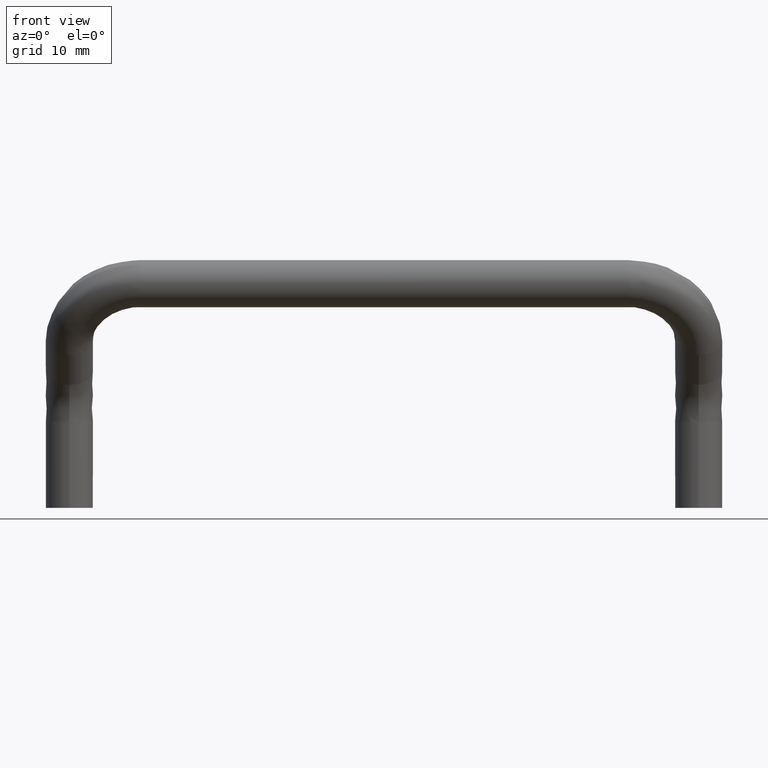
[diagram: clean part render]
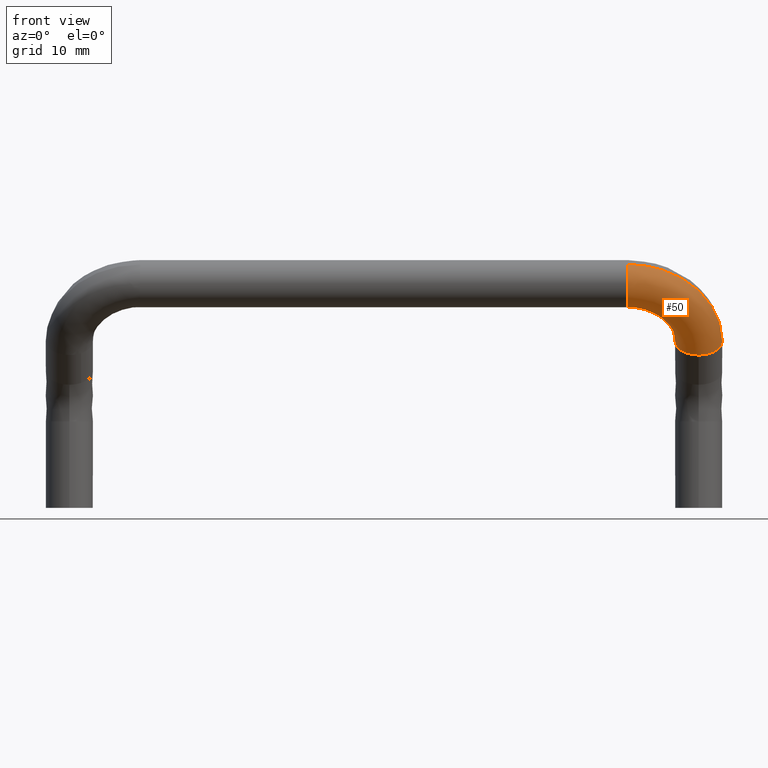
[diagram: same view with one face highlighted and labeled with its STEP entity id]
A machine part, front view. The second image highlights one B-rep face of the part: STEP entity #50.
In plain terms, the highlighted face is a freeform B-spline surface patch.
Its self-contained STEP definition (entity closure, byte-faithful):
#50=ADVANCED_FACE('',(#169),#168,.T.);
#168=( BOUNDED_SURFACE() B_SPLINE_SURFACE( 2,2,((#402,#403,#404,#405,#406,#407,#408),(#409,#410,#411,#412,#413,#414,#415),(#416,#417,#418,#419,#420,#421,#422),(#423,#424,#425,#426,#427,#428,#429),(#430,#431,#432,#433,#434,#435,#436)), .UNSPECIFIED.,.F.,.F.,.F.) B_SPLINE_SURFACE_WITH_KNOTS((3,2,3),(3,2,2,3),(-3.14159265359E+00,-1.57079632679E+00,0.00000000000E+00),(1.56908603987E+00,1.57079632679E+00,3.14159265359E+00,3.14330294051E+00), .UNSPECIFIED. ) GEOMETRIC_REPRESENTATION_ITEM() RATIONAL_B_SPLINE_SURFACE(((9.99362888724E-01,9.99681097140E-01,1.00000000000E+00,7.07106781187E-01,1.00000000000E+00,9.99681097140E-01,9.99362888724E-01),(7.06656275483E-01,7.06881282811E-01,7.07106781187E-01,5.00000000000E-01,7.07106781187E-01,7.06881282811E-01,7.06656275483E-01),(9.99362888724E-01,9.99681097140E-01,1.00000000000E+00,7.07106781187E-01,1.00000000000E+00,9.99681097140E-01,9.99362888724E-01),(7.06656275483E-01,7.06881282811E-01,7.07106781187E-01,5.00000000000E-01,7.07106781187E-01,7.06881282811E-01,7.06656275483E-01),(9.99362888724E-01,9.99681097140E-01,1.00000000000E+00,7.07106781187E-01,1.00000000000E+00,9.99681097140E-01,9.99362888724E-01))) REPRESENTATION_ITEM('') SURFACE() );
#169=FACE_OUTER_BOUND('',#437,.T.);
#402=CARTESIAN_POINT('',(3.69999928825E+01,5.24435089545E+00,-4.32551843624E+00));
#403=CARTESIAN_POINT('',(3.70000000000E+01,5.24166105291E+00,-4.32176115693E+00));
#404=CARTESIAN_POINT('',(3.70000000000E+01,5.23897120719E+00,-4.31800387317E+00));
#405=CARTESIAN_POINT('',(3.70000000000E+01,1.74632373575E+00,5.60665375572E-01));
#406=CARTESIAN_POINT('',(3.10000000001E+01,1.74632373575E+00,5.60665375572E-01));
#407=CARTESIAN_POINT('',(3.09953791288E+01,1.74632373575E+00,5.60665375572E-01));
#408=CARTESIAN_POINT('',(3.09907582630E+01,1.74632787890E+00,5.60659588267E-01));
#409=CARTESIAN_POINT('',(3.69999928825E+01,2.80501627102E+00,-6.07184217200E+00));
#410=CARTESIAN_POINT('',(3.70000000000E+01,2.80232642849E+00,-6.06808489269E+00));
#411=CARTESIAN_POINT('',(3.70000000000E+01,2.79963658276E+00,-6.06432760893E+00));
#412=CARTESIAN_POINT('',(3.70000000000E+01,-6.93010888673E-01,-1.18565836018E+00));
#413=CARTESIAN_POINT('',(3.10000000001E+01,-6.93010888673E-01,-1.18565836018E+00));
#414=CARTESIAN_POINT('',(3.09953791288E+01,-6.93010888673E-01,-1.18565836018E+00));
#415=CARTESIAN_POINT('',(3.09907582630E+01,-6.93006745532E-01,-1.18566414749E+00));
#416=CARTESIAN_POINT('',(3.99999893237E+01,2.80770611515E+00,-6.07559945353E+00));
#417=CARTESIAN_POINT('',(4.00000000000E+01,2.80367135135E+00,-6.06996353457E+00));
#418=CARTESIAN_POINT('',(4.00000000000E+01,2.79963658276E+00,-6.06432760893E+00));
#419=CARTESIAN_POINT('',(4.00000000000E+01,-2.43933462443E+00,1.25367626424E+00));
#420=CARTESIAN_POINT('',(3.10000000001E+01,-2.43933462443E+00,1.25367626424E+00));
#421=CARTESIAN_POINT('',(3.09930686932E+01,-2.43933462443E+00,1.25367626424E+00));
#422=CARTESIAN_POINT('',(3.09861373945E+01,-2.43932840972E+00,1.25366758329E+00));
#423=CARTESIAN_POINT('',(4.29999857650E+01,2.81039595929E+00,-6.07935673506E+00));
#424=CARTESIAN_POINT('',(4.30000000000E+01,2.80501627421E+00,-6.07184217645E+00));
#425=CARTESIAN_POINT('',(4.30000000000E+01,2.79963658276E+00,-6.06432760893E+00));
#426=CARTESIAN_POINT('',(4.30000000000E+01,-4.18565836018E+00,3.69301088867E+00));
#427=CARTESIAN_POINT('',(3.10000000001E+01,-4.18565836018E+00,3.69301088867E+00));
#428=CARTESIAN_POINT('',(3.09907582576E+01,-4.18565836018E+00,3.69301088867E+00));
#429=CARTESIAN_POINT('',(3.09815165260E+01,-4.18565007390E+00,3.69299931406E+00));
#430=CARTESIAN_POINT('',(4.29999857650E+01,5.24973058371E+00,-4.33303299931E+00));
#431=CARTESIAN_POINT('',(4.30000000000E+01,5.24435089864E+00,-4.32551844070E+00));
#432=CARTESIAN_POINT('',(4.30000000000E+01,5.23897120719E+00,-4.31800387317E+00));
#433=CARTESIAN_POINT('',(4.30000000000E+01,-1.74632373576E+00,5.43933462443E+00));
#434=CARTESIAN_POINT('',(3.10000000001E+01,-1.74632373576E+00,5.43933462443E+00));
#435=CARTESIAN_POINT('',(3.09907582576E+01,-1.74632373576E+00,5.43933462443E+00));
#436=CARTESIAN_POINT('',(3.09815165260E+01,-1.74631544947E+00,5.43932304982E+00));
#437=EDGE_LOOP('',(#648,#649,#650,#651,#652,#653));
#648=ORIENTED_EDGE('',*,*,#759,.T.);
#649=ORIENTED_EDGE('',*,*,#760,.T.);
#650=ORIENTED_EDGE('',*,*,#761,.F.);
#651=ORIENTED_EDGE('',*,*,#762,.F.);
#652=ORIENTED_EDGE('',*,*,#763,.F.);
#653=ORIENTED_EDGE('',*,*,#764,.T.);
#759=EDGE_CURVE('',#966,#967,#968,.T.);
#760=EDGE_CURVE('',#967,#974,#975,.T.);
#761=EDGE_CURVE('',#981,#974,#982,.T.);
#762=EDGE_CURVE('',#988,#981,#989,.T.);
#763=EDGE_CURVE('',#995,#988,#996,.T.);
#764=EDGE_CURVE('',#995,#966,#1002,.T.);
#966=VERTEX_POINT('',#1325);
#967=VERTEX_POINT('',#1326);
#968=CIRCLE('',#1330,3.00000000000E+00);
#974=VERTEX_POINT('',#1331);
#975=CIRCLE('',#1335,3.00000000000E+00);
#981=VERTEX_POINT('',#1336);
#982=(BOUNDED_CURVE() B_SPLINE_CURVE(2,(#1337,#1338,#1339),.UNSPECIFIED.,.F.,.F.) B_SPLINE_CURVE_WITH_KNOTS((3,3),(1.57079632679E+00,3.14159265359E+00),.UNSPECIFIED.) CURVE() GEOMETRIC_REPRESENTATION_ITEM() RATIONAL_B_SPLINE_CURVE((1.00000000000E+00,7.07106781187E-01,1.00000000000E+00)) REPRESENTATION_ITEM('') );
#988=VERTEX_POINT('',#1340);
#989=CIRCLE('',#1344,3.00000000000E+00);
#995=VERTEX_POINT('',#1345);
#996=CIRCLE('',#1349,3.00000000000E+00);
#1002=(BOUNDED_CURVE() B_SPLINE_CURVE(3,(#1350,#1351,#1352,#1353,#1354),.UNSPECIFIED.,.F.,.F.) B_SPLINE_CURVE_WITH_KNOTS((4,1,4),(1.57079632678E+00,2.35619449019E+00,3.14159265361E+00),.UNSPECIFIED.) CURVE() GEOMETRIC_REPRESENTATION_ITEM() RATIONAL_B_SPLINE_CURVE((1.00000000000E+00,1.00000000000E+00,1.00000000000E+00,1.00000000000E+00,1.00000000000E+00)) REPRESENTATION_ITEM('') );
#1325=CARTESIAN_POINT('',(3.10000000001E+01,-1.74618414932E+00,5.43943454855E+00));
#1326=CARTESIAN_POINT('',(3.10000000001E+01,5.17363929475E-14,4.44089209850E-16));
#1327=CARTESIAN_POINT('',(3.10000000001E+01,5.20417042793E-14,3.00000000000E+00));
#1328=DIRECTION('',(1.00000000000E+00,-2.06806279116E-15,2.88875246003E-15));
#1329=DIRECTION('',(2.88875246003E-15,3.88578058619E-16,-1.00000000000E+00));
#1330=AXIS2_PLACEMENT_3D('',#1327,#1328,#1329);
#1331=CARTESIAN_POINT('',(3.10000000001E+01,1.74632373576E+00,5.60665375574E-01));
#1332=CARTESIAN_POINT('',(3.10000000001E+01,5.20417042793E-14,3.00000000000E+00));
#1333=DIRECTION('',(1.00000000000E+00,-2.06806279116E-15,2.88875246003E-15));
#1334=DIRECTION('',(2.88875246003E-15,3.88578058619E-16,-1.00000000000E+00));
#1335=AXIS2_PLACEMENT_3D('',#1332,#1333,#1334);
#1336=CARTESIAN_POINT('',(3.70000000001E+01,5.23897119906E+00,-4.31800387916E+00));
#1337=CARTESIAN_POINT('',(3.70000000000E+01,5.23897120719E+00,-4.31800387317E+00));
#1338=CARTESIAN_POINT('',(3.70000000000E+01,1.74632373575E+00,5.60665375572E-01));
#1339=CARTESIAN_POINT('',(3.10000000001E+01,1.74632373575E+00,5.60665375572E-01));
#1340=CARTESIAN_POINT('',(3.99999990163E+01,2.79963658283E+00,-6.06432760904E+00));
#1341=CARTESIAN_POINT('',(4.00000000001E+01,5.23897120726E+00,-4.31800387329E+00));
#1342=DIRECTION('',(1.01511498893E-16,5.82107911917E-01,-8.13111541477E-01));
#1343=DIRECTION('',(-3.27933333178E-07,-8.13111541477E-01,-5.82107911917E-01));
#1344=AXIS2_PLACEMENT_3D('',#1341,#1342,#1343);
#1345=CARTESIAN_POINT('',(4.30000000001E+01,5.23896956133E+00,-4.31800505162E+00));
#1346=CARTESIAN_POINT('',(4.00000000001E+01,5.23897120726E+00,-4.31800387329E+00));
#1347=DIRECTION('',(1.01511498893E-16,5.82107911917E-01,-8.13111541477E-01));
#1348=DIRECTION('',(-3.27933333178E-07,-8.13111541477E-01,-5.82107911917E-01));
#1349=AXIS2_PLACEMENT_3D('',#1346,#1347,#1348);
#1350=CARTESIAN_POINT('',(4.30000000000E+01,5.23897120728E+00,-4.31800387331E+00));
#1351=CARTESIAN_POINT('',(4.30250591044E+01,3.43050762821E+00,-1.79186983806E+00));
#1352=CARTESIAN_POINT('',(4.04046583477E+01,-2.35554825864E-01,3.32903237293E+00));
#1353=CARTESIAN_POINT('',(3.41067496971E+01,-1.76091083873E+00,5.45971047148E+00));
#1354=CARTESIAN_POINT('',(3.09999999999E+01,-1.74632373576E+00,5.43933462443E+00));